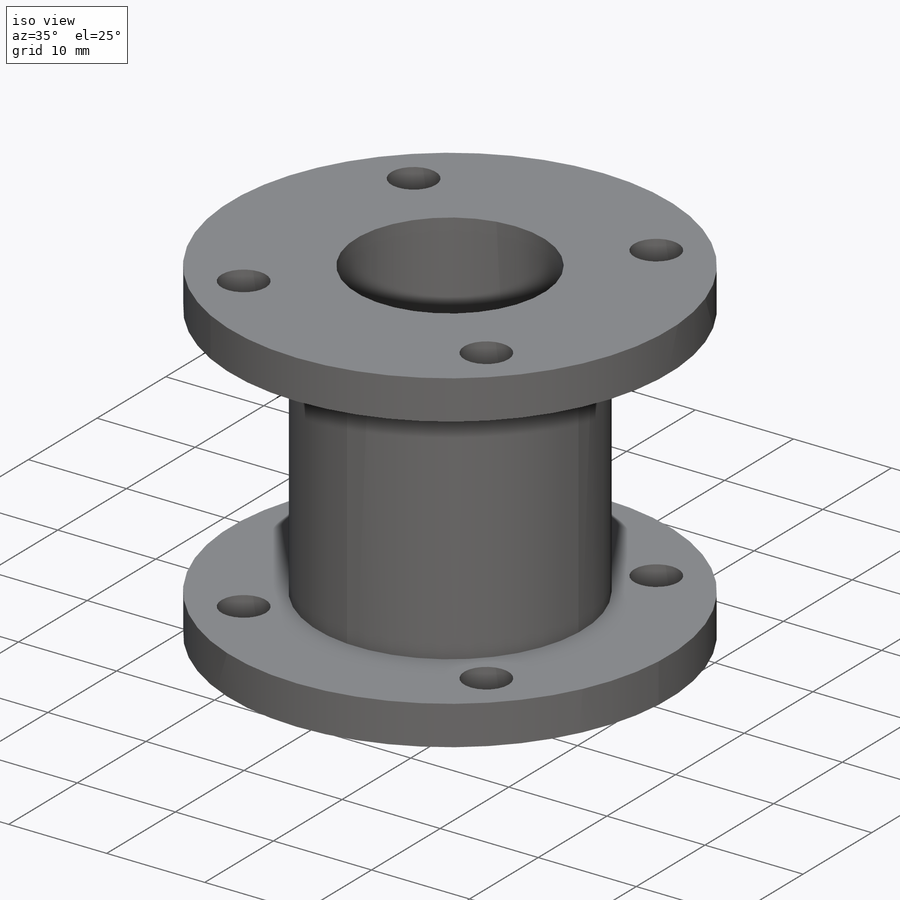
[diagram: iso view]
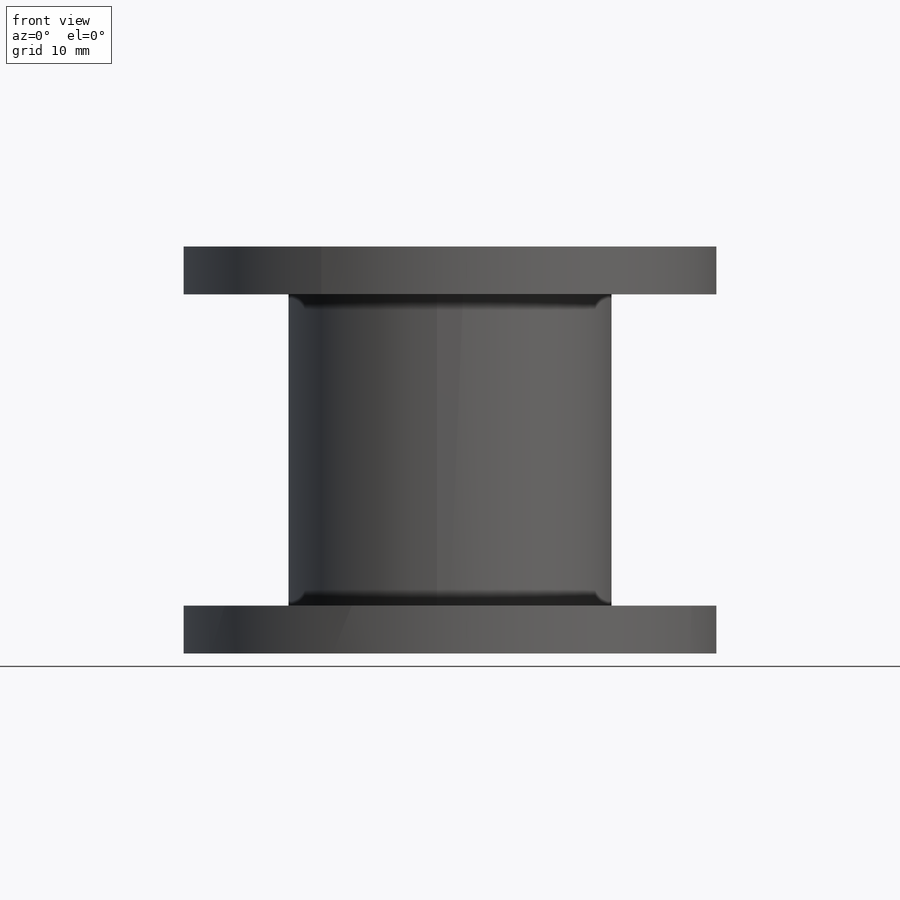
[diagram: front view]
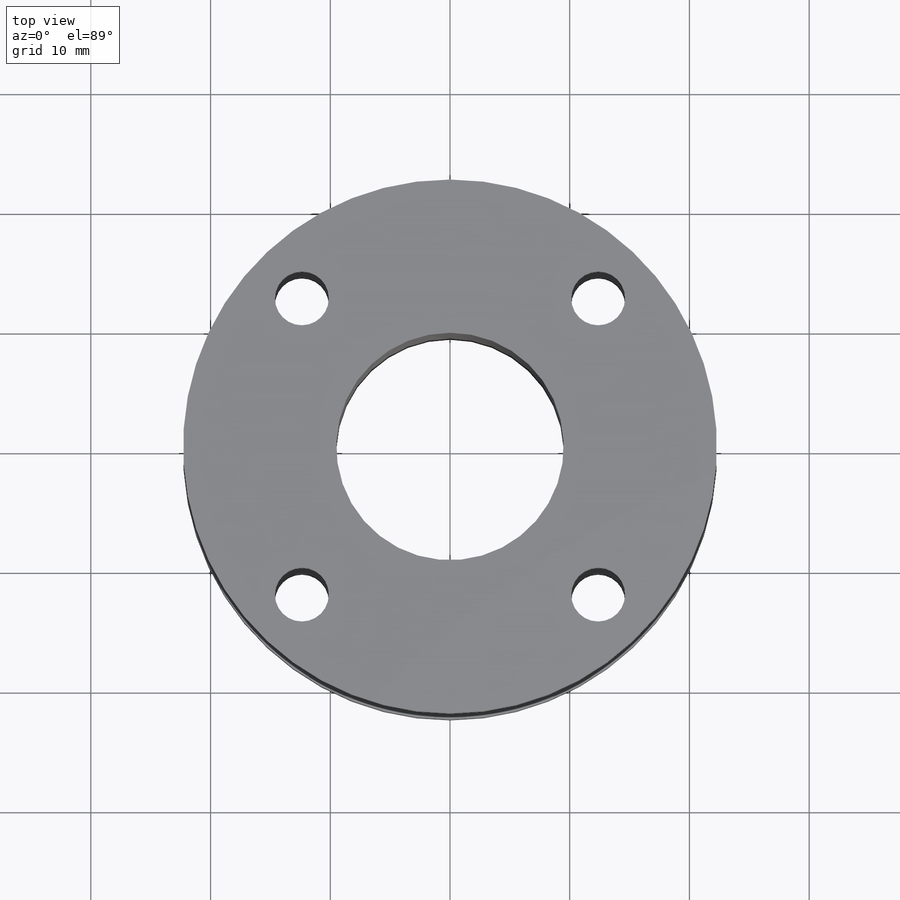
[diagram: top view]
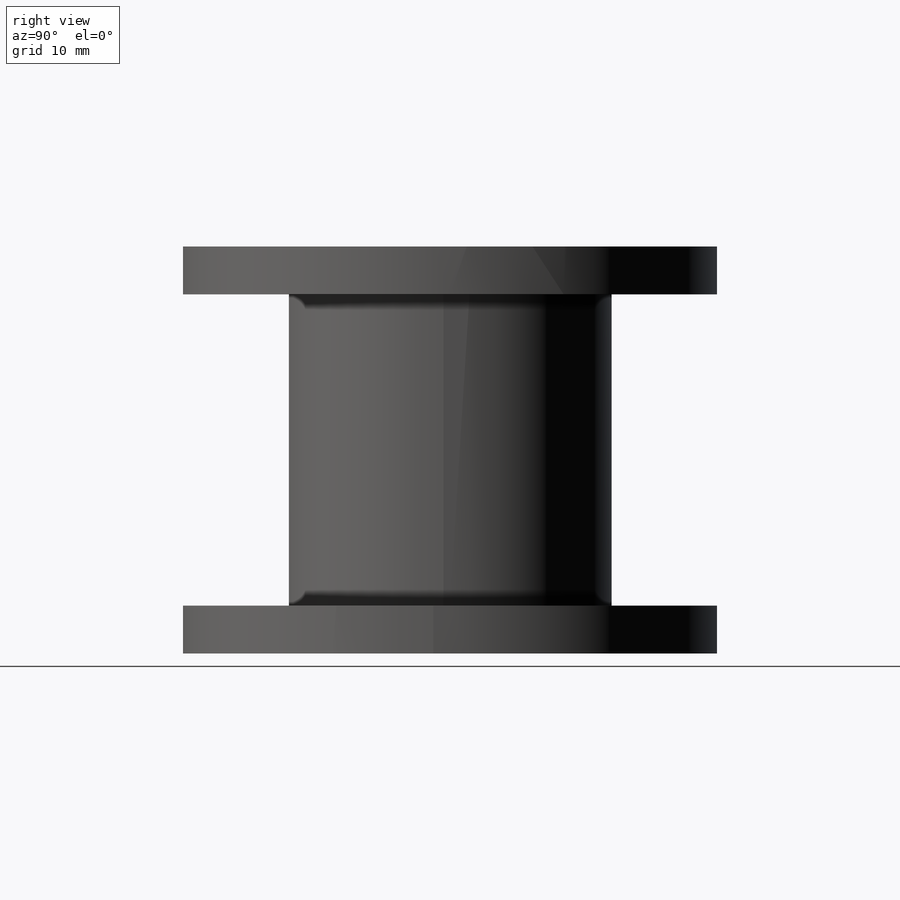
[diagram: right view]
SOLIDWORKS PART (.sldprt)
format: sldprt  version: not decoded by parser v0  size: 225,792 bytes
history: native  units: mm
features: sketch x3, material x1, revolve x1, hole x1 (+16 scaffold rows collapsed)
feature tree (22):
  scaffold x16  (default folders/planes/origin — collapsed)
  material  "Material <not specified>"
  sketch  "Sketch1"  dims[c1.D2=28.0mm c1.D3=~35.116093mm c1.D4=9.5mm c1.D5=5.0mm c2.D3=33.0mm c2.D1=13.5mm c2.D2=4.0mm c3.D3=26.0mm c3.D4=44.6mm c3.D2=4.0mm c3.D1=4.0mm c4.D2=4.0mm]
  revolve  "Revolve1"  Angle=360deg
  hole  "M4 Clearance Hole1"  Diameter=4.5mm Depth=34mm
  sketch  "Sketch3"  dims[c1.D1=35.0mm c1.D2=35.0mm c2.D1=35.0mm c2.D2=35.0mm]
  sketch  "Sketch2"  dims[hole-wizard template sketch: 60 standard entries collapsed; hole parameters kept: c18.Thru Hole Depth=34.0mm]
decode coverage: 5 of 5 modeling features carry decoded parameters
note: ~ marks probable driven/reference dimensions
note: suppression state not decoded; provenance and decode notes live in map.json
